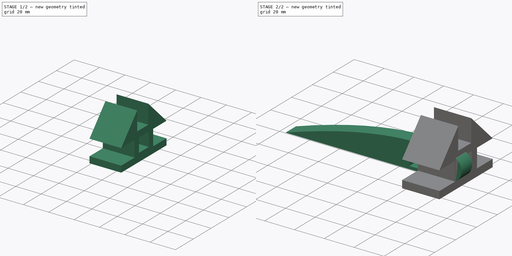
[diagram: build sequence overview — one tinted view per stage of 2, left to right]
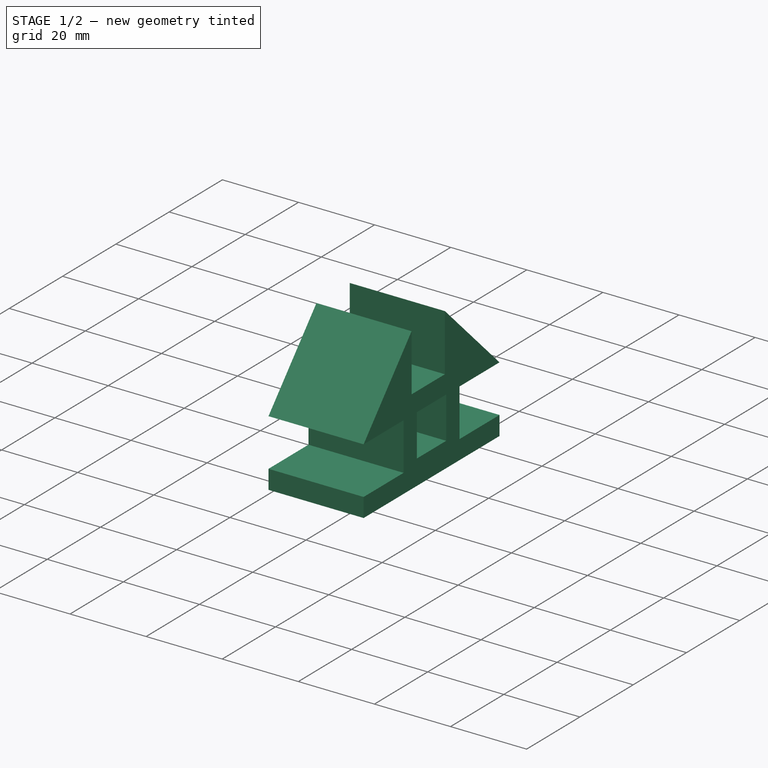
[diagram: stage 1 of 2 — iso view after this stage's code; geometry added in this stage tinted green]
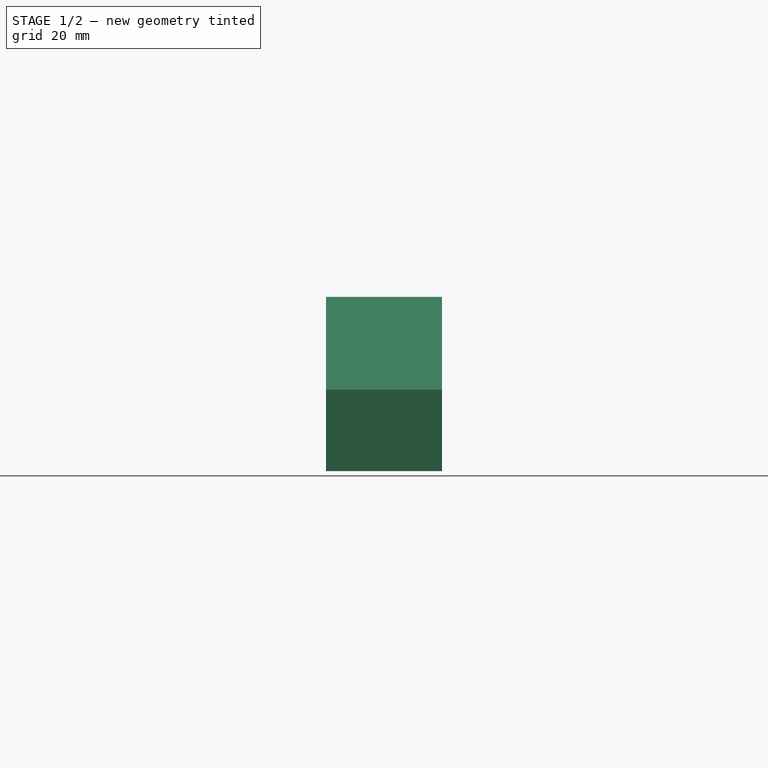
[diagram: stage 1 of 2 — front view after this stage's code; geometry added in this stage tinted green]
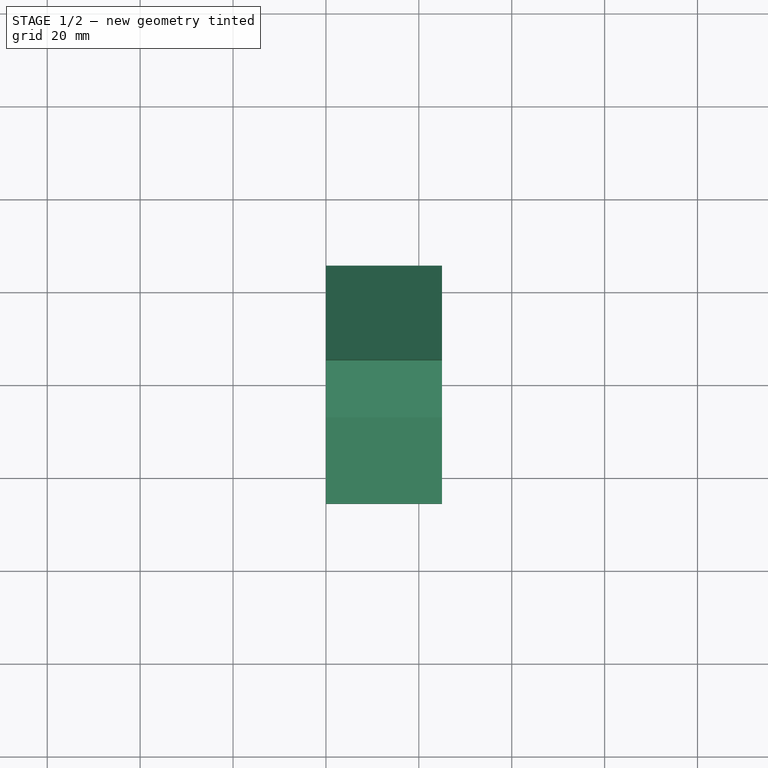
[diagram: stage 1 of 2 — top view after this stage's code; geometry added in this stage tinted green]
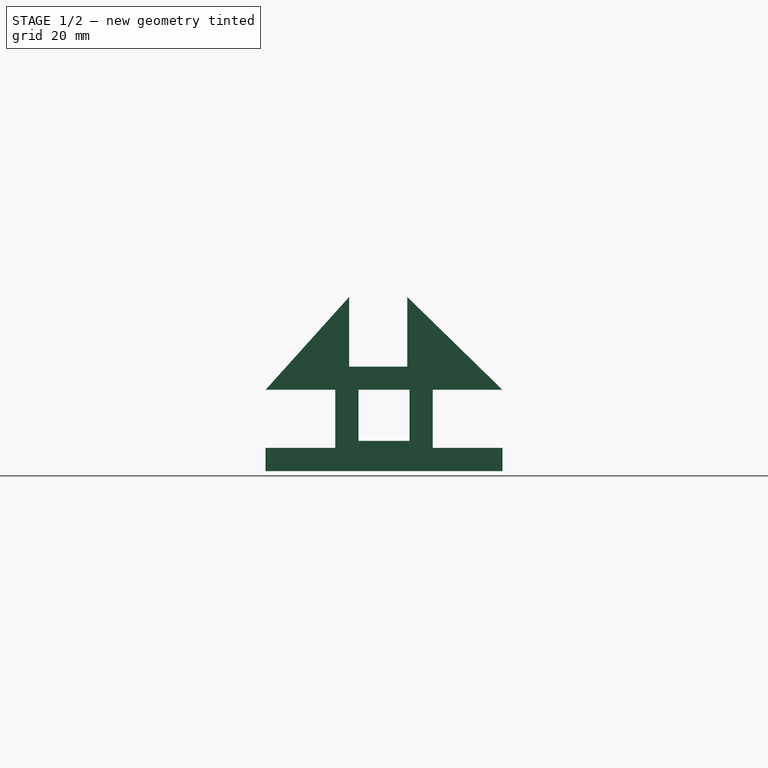
[diagram: stage 1 of 2 — right view after this stage's code; geometry added in this stage tinted green]
FCSTD DOCUMENT  (FreeCAD 0.20RUnknown)
Label: aeroplane
License: All rights reserved
LicenseURL: http://en.wikipedia.org/wiki/All_rights_reserved
objects: Sketcher::SketchObject×2, PartDesign::Pad×2, PartDesign::Body×2
note: 8 computed .brp shape members not serialized (recipe doc carries the construction recipe); baked Part::Feature solids carry a one-line shape summary decoded from their .brp

FEATURE [PartDesign::Body] Body  label="WingRib"
  Group = -> [Sketch,Pad]
  Origin = -> Origin
  Tip = -> Pad
FEATURE [Sketcher::SketchObject] Sketch001
  FullyConstrained = true
  MapMode = 5
  Placement = pos=(0,0,0) rot=(0.57735,0.57735,0.57735;2.0944rad)
  Support = -> [YZ_Plane001]
  sketch-geometry (19):
    g0: LineSegment StartX=-5.5 StartY=-5.5 StartZ=0 EndX=-5.5 EndY=5.5 EndZ=0
    g1: LineSegment StartX=-5.5 StartY=5.5 StartZ=0 EndX=5.5 EndY=5.5 EndZ=0
    g2: LineSegment StartX=5.5 StartY=5.5 StartZ=0 EndX=5.5 EndY=-5.5 EndZ=0
    g3: LineSegment StartX=5.5 StartY=-5.5 StartZ=0 EndX=-5.5 EndY=-5.5 EndZ=0
    g4: GeomPoint X=0 Y=0 Z=0
    g5: LineSegment StartX=10.5 StartY=5.5 StartZ=0 EndX=25.5 EndY=5.5 EndZ=0
    g6: LineSegment StartX=25.5 StartY=-7 StartZ=0 EndX=10.5 EndY=-7 EndZ=0
    g7: LineSegment StartX=10.5 StartY=-7 StartZ=0 EndX=10.5 EndY=5.5 EndZ=0
    g8: LineSegment StartX=-25.5 StartY=5.5 StartZ=0 EndX=-10.5 EndY=5.5 EndZ=0
    g9: LineSegment StartX=-10.5 StartY=5.5 StartZ=0 EndX=-10.5 EndY=-7 EndZ=0
    g10: LineSegment StartX=-10.5 StartY=-7 StartZ=0 EndX=-25.5 EndY=-7 EndZ=0
    g11: LineSegment StartX=5 StartY=25.5 StartZ=0 EndX=5 EndY=10.5 EndZ=0
    g12: LineSegment StartX=5 StartY=10.5 StartZ=0 EndX=-7.5 EndY=10.5 EndZ=0
    g13: LineSegment StartX=-7.5 StartY=10.5 StartZ=0 EndX=-7.5 EndY=25.5 EndZ=0
    g14: LineSegment StartX=-25.5 StartY=-7 StartZ=0 EndX=-25.5 EndY=-12 EndZ=0
    g15: LineSegment StartX=25.5 StartY=-7 StartZ=0 EndX=25.5 EndY=-12 EndZ=0
    g16: LineSegment StartX=25.5 StartY=-12 StartZ=0 EndX=-25.5 EndY=-12 EndZ=0
    g17: LineSegment StartX=-7.5 StartY=25.5 StartZ=0 EndX=-25.5 EndY=5.5 EndZ=0
    g18: LineSegment StartX=5 StartY=25.5 StartZ=0 EndX=25.5 EndY=5.5 EndZ=0
  constraints (54):
    c: Coincident(g0,g1)
    c: Coincident(g1,g2)
    c: Coincident(g2,g3)
    c: Coincident(g3,g0)
    c: Horizontal(g1)
    c: Horizontal(g3)
    c: Vertical(g0)
    c: Vertical(g2)
    c: Symmetric(g1,g0,g4)
    c: Coincident(g4,g-1)
    c: DistanceX(g1,g1) = 11
    c: Equal(g1,g2)
    c: Coincident(g6,g7)
    c: Coincident(g7,g5)
    c: Horizontal(g5)
    c: Horizontal(g6)
    c: Vertical(g7)
    c: Coincident(g8,g9)
    c: Coincident(g9,g10)
    c: Horizontal(g8)
    c: Horizontal(g10)
    c: Vertical(g9)
    c: DistanceX(g8,g8) = 15
    c: DistanceY(g9,g9) = 12.5
    c: Equal(g8,g5)
    c: Equal(g9,g7)
    c: Coincident(g11,g12)
    c: Coincident(g12,g13)
    c: Horizontal(g12)
    c: Vertical(g11)
    c: Vertical(g13)
    c: Equal(g6,g11)
    c: Equal(g12,g7)
    c: DistanceY(g5,g1) = 0
    c: DistanceY(g0,g8) = 0
    c: DistanceX(g1,g5) = 5
    c: DistanceX(g8,g0) = 5
    c: DistanceY(g1,g11) = 5
    c: Coincident(g14,g10)
    c: Vertical(g14)
    c: Coincident(g15,g6)
    c: Vertical(g15)
    c: Coincident(g16,g15)
    c: Coincident(g16,g14)
    c: Horizontal(g16)
    c: DistanceY(g14,g14) = 5
    c: Equal(g5,g6)
    c: Equal(g8,g10)
    c: Coincident(g17,g13)
    c: Coincident(g17,g8)
    c: Coincident(g18,g11)
    c: Coincident(g18,g5)
    c: Equal(g13,g11)
    c: DistanceX(g4,g11) = 5
FEATURE [PartDesign::Pad] Pad001
  Direction = (1,-2e-16,3e-16)
  Length = 25
  Length2 = 10
  Placement = pos=(0,0,0) rot=(0.57735,0.57735,0.57735;2.0944rad)
  Profile = -> Sketch001
  ReferenceAxis = -> Sketch001 [N_Axis]
  Type = 0
FEATURE [PartDesign::Body] Body001  label="TailMount"
  Group = -> [Sketch001,Pad001]
  Origin = -> Origin001
  Tip = -> Pad001
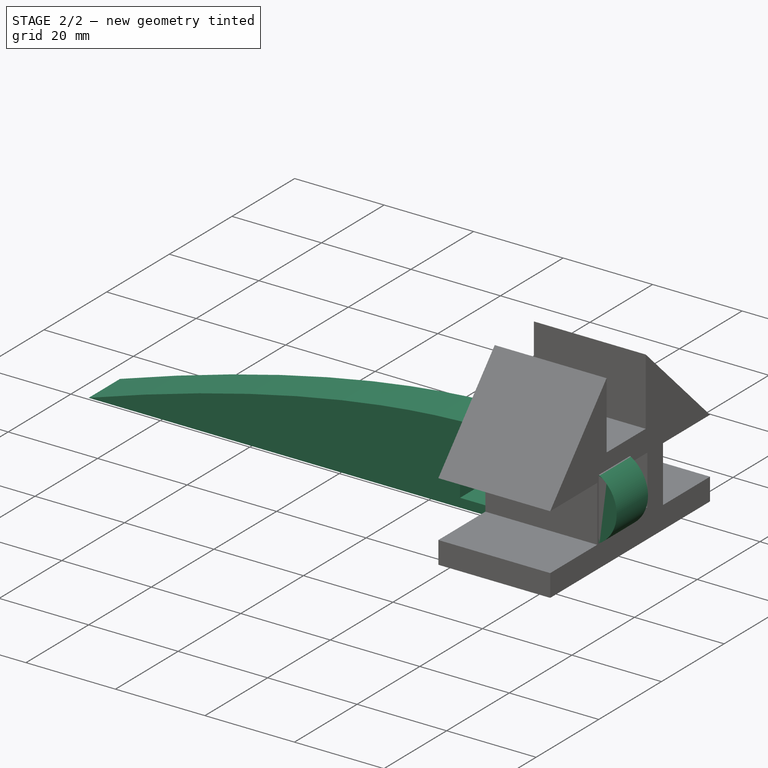
[diagram: stage 2 of 2 — iso view after this stage's code; geometry added in this stage tinted green]
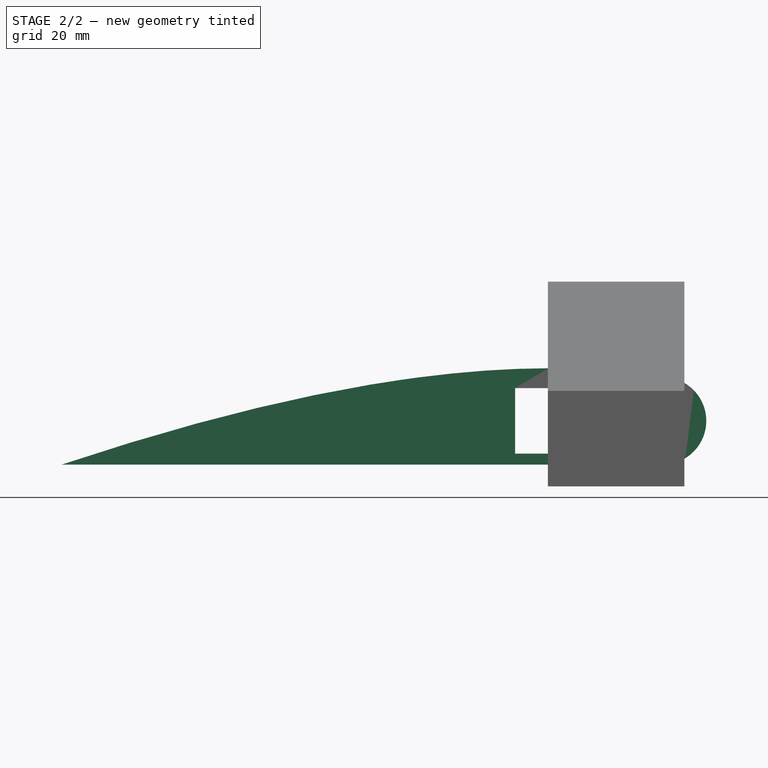
[diagram: stage 2 of 2 — front view after this stage's code; geometry added in this stage tinted green]
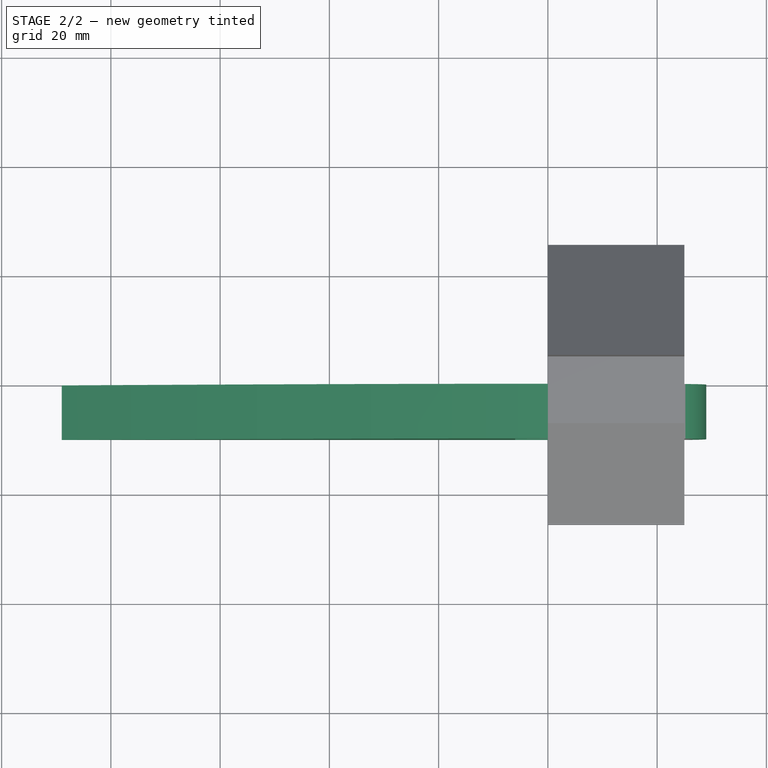
[diagram: stage 2 of 2 — top view after this stage's code; geometry added in this stage tinted green]
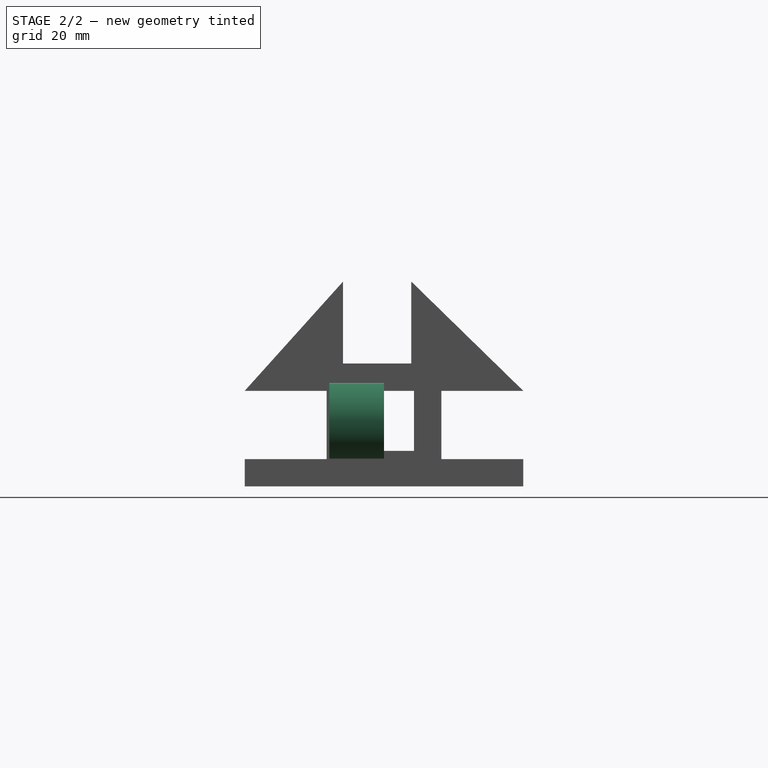
[diagram: stage 2 of 2 — right view after this stage's code; geometry added in this stage tinted green]
FEATURE [Sketcher::SketchObject] Sketch
  FullyConstrained = true
  MapMode = 5
  Placement = pos=(0,0,0) rot=(1,0,0;1.5708rad)
  Support = -> [XZ_Plane]
  sketch-geometry (13):
    g0: LineSegment StartX=-6 StartY=-6 StartZ=0 EndX=-6 EndY=6 EndZ=0
    g1: LineSegment StartX=-6 StartY=6 StartZ=0 EndX=6 EndY=6 EndZ=0
    g2: LineSegment StartX=6 StartY=6 StartZ=0 EndX=6 EndY=-6 EndZ=0
    g3: LineSegment StartX=6 StartY=-6 StartZ=0 EndX=-6 EndY=-6 EndZ=0
    g4: GeomPoint X=0 Y=0 Z=0
    g5: LineSegment StartX=-89 StartY=-8 StartZ=0 EndX=21 EndY=-8 EndZ=0
    g6: ArcOfCircle CenterX=21 CenterY=0 CenterZ=0 NormalX=0 NormalY=0 NormalZ=1 AngleXU=0 Radius=8 StartAngle=4.71238 EndAngle=7.85399
    g7: Circle CenterX=21 CenterY=8 CenterZ=0 NormalX=0 NormalY=0 NormalZ=1 AngleXU=0 Radius=1
    g8: Circle CenterX=-20 CenterY=15 CenterZ=0 NormalX=0 NormalY=0 NormalZ=1 AngleXU=0 Radius=1
    g9: Circle CenterX=-89 CenterY=-8 CenterZ=0 NormalX=0 NormalY=0 NormalZ=1 AngleXU=0 Radius=1
    g10: BSplineCurve PolesCount=3 KnotsCount=2 Degree=2 IsPeriodic=0
    g11: GeomPoint X=21 Y=8 Z=0
    g12: GeomPoint X=-89 Y=-8 Z=0
  constraints (32):
    c: Coincident(g0,g1)
    c: Coincident(g1,g2)
    c: Coincident(g2,g3)
    c: Coincident(g3,g0)
    c: Horizontal(g1)
    c: Horizontal(g3)
    c: Vertical(g0)
    c: Vertical(g2)
    c: Symmetric(g1,g0,g4)
    c: Coincident(g4,g-1)
    c: Equal(g1,g2)
    c: DistanceX(g1,g1) = 12
    c: Horizontal(g5)
    c: PointOnObject(g6,g-1)
    c: Coincident(g6,g5)
    c: Weight(g7) = 1
    c: Coincident(g10,g6)
    c: Equal(g7,g8)
    c: Equal(g7,g9)
    c: Coincident(g10,g5)
    c: InternalAlignment(g7,g10)
    c: InternalAlignment(g8,g10)
    c: InternalAlignment(g9,g10)
    c: InternalAlignment(g11,g10)
    c: InternalAlignment(g12,g10)
    c: Radius(g6) = 8
    c: DistanceX(g2,g5) = 15
    c: DistanceY(g5,g2) = 2
    c: DistanceX(g5,g5) = 110
    c: DistanceX(g6,g5) = 0
    c: DistanceX(g8,g4) = 20
    c: DistanceY(g4,g8) = 15
FEATURE [PartDesign::Pad] Pad
  Direction = (0,-1,2e-16)
  Length = 10
  Length2 = 10
  Placement = pos=(0,0,0) rot=(1,0,0;1.5708rad)
  Profile = -> Sketch
  ReferenceAxis = -> Sketch [N_Axis]
  Type = 0
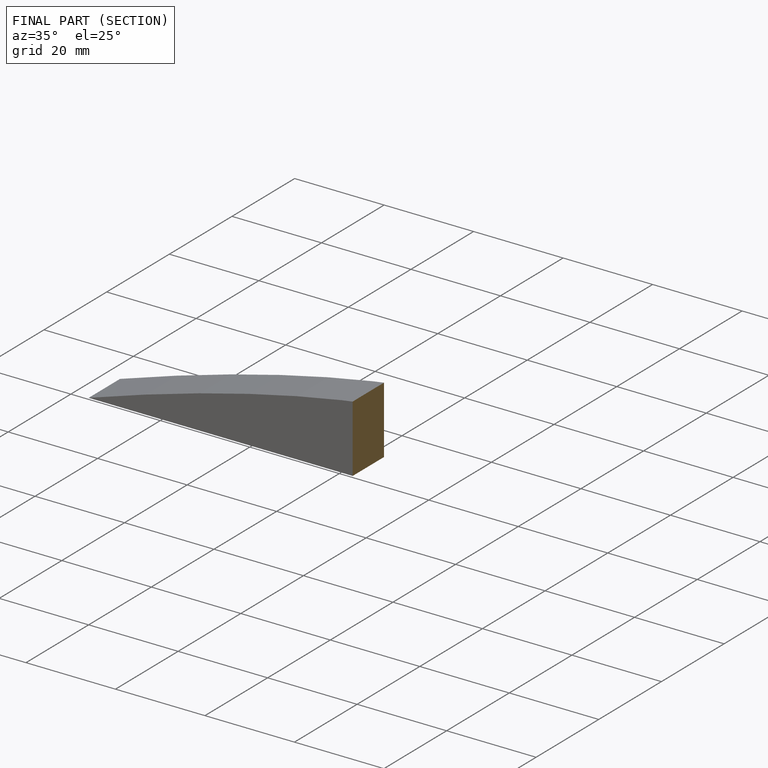
[diagram: finished part — half-section view (interior)]
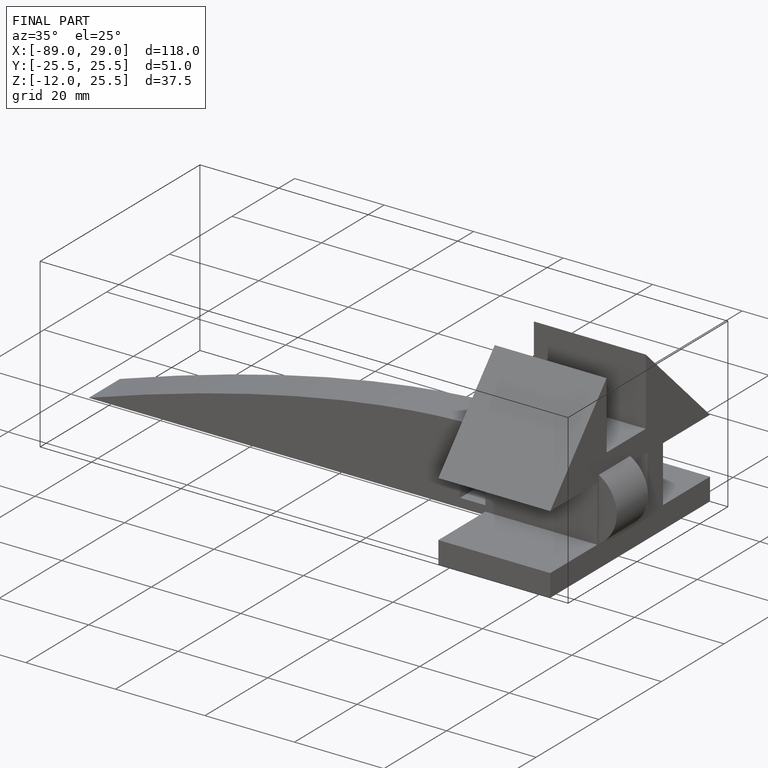
[diagram: finished part — iso view with bounding-box wireframe]
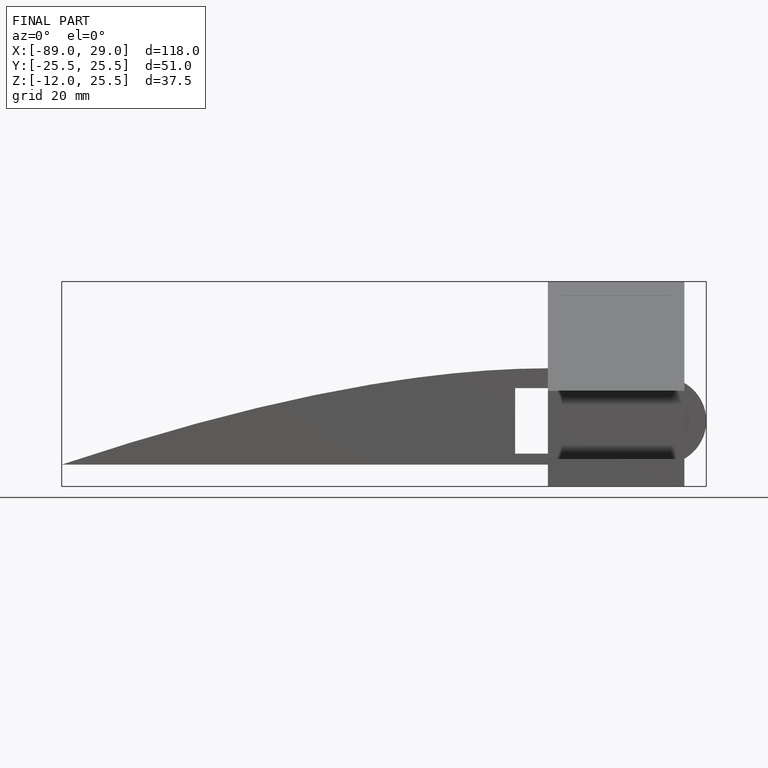
[diagram: finished part — front view with bounding-box wireframe]
